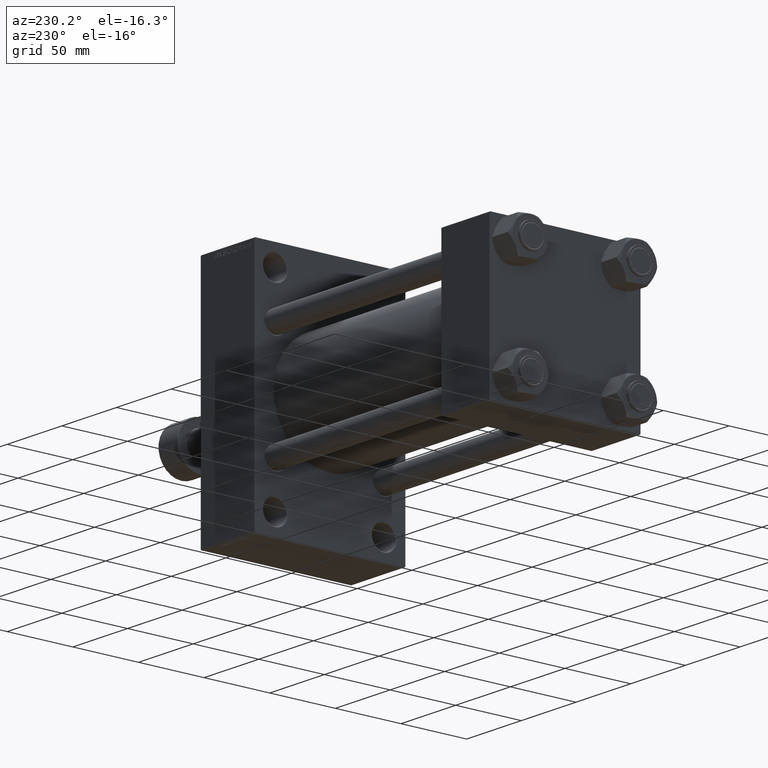
[diagram: clean part render]
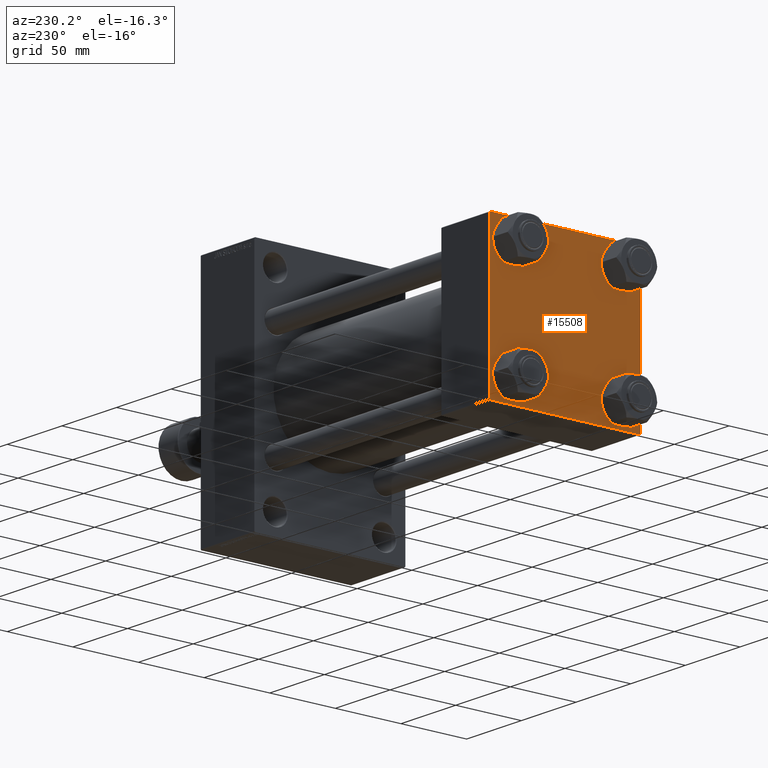
[diagram: same view with one face highlighted and labeled with its STEP entity id]
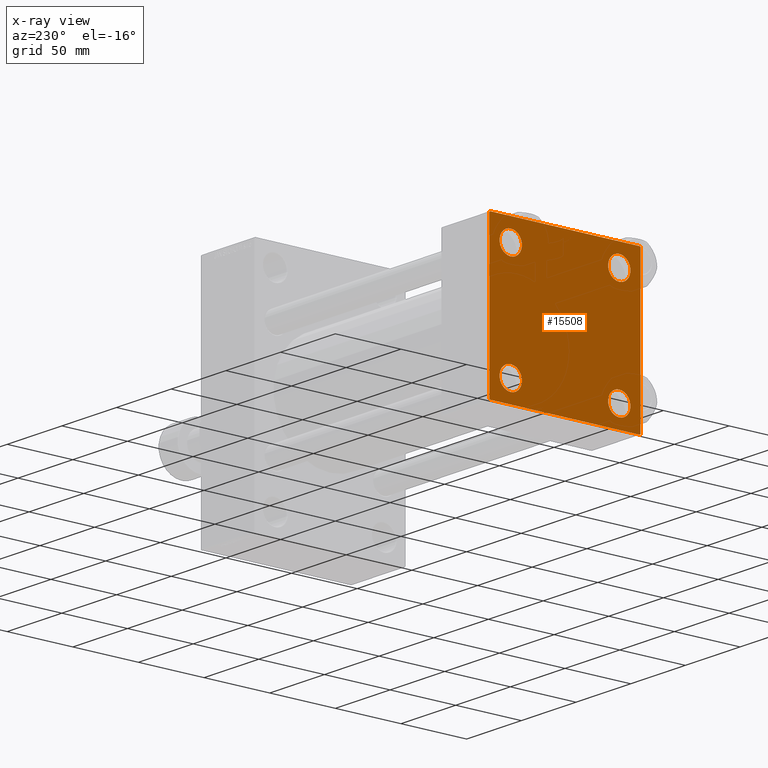
[diagram: x-ray of the same camera — body ghosted, the highlighted face saturated]
A machine part, auxiliary view. The second image highlights one B-rep face of the part: STEP entity #15508.
The next image is the same camera in x-ray: the body ghosted, the highlighted face saturated — about 0% of this face is hidden behind the body in this view.
In plain terms, the highlighted planar face has unit normal (-1, 0, 0).
Its self-contained STEP definition (entity closure, byte-faithful):
#165 = DIRECTION ( 'NONE',  ( 1.000000000000000000, -0.000000000000000000, 0.000000000000000000 ) ) ;
#230 = DIRECTION ( 'NONE',  ( 0.000000000000000000, -0.7071067811865474617, 0.7071067811865474617 ) ) ;
#781 = PLANE ( 'NONE',  #12154 ) ;
#1009 = DIRECTION ( 'NONE',  ( 1.000000000000000000, -0.000000000000000000, 0.000000000000000000 ) ) ;
#1037 = ORIENTED_EDGE ( 'NONE', *, *, #19076, .T. ) ;
#1373 = CIRCLE ( 'NONE', #19372, 8.499999999999992895 ) ;
#1486 = ORIENTED_EDGE ( 'NONE', *, *, #15288, .T. ) ;
#1750 = CARTESIAN_POINT ( 'NONE',  ( 0.000000000000000000, 41.34999999999999432, -41.35000000000000142 ) ) ;
#2036 = ORIENTED_EDGE ( 'NONE', *, *, #14814, .T. ) ;
#2110 = DIRECTION ( 'NONE',  ( 0.000000000000000000, 0.000000000000000000, 1.000000000000000000 ) ) ;
#2564 = ORIENTED_EDGE ( 'NONE', *, *, #19923, .T. ) ;
#2909 = AXIS2_PLACEMENT_3D ( 'NONE', #22882, #12624, #30483 ) ;
#3504 = FACE_BOUND ( 'NONE', #22619, .T. ) ;
#3588 = VERTEX_POINT ( 'NONE', #25608 ) ;
#4480 = FACE_BOUND ( 'NONE', #33860, .T. ) ;
#5069 = CARTESIAN_POINT ( 'NONE',  ( 0.000000000000000000, 41.34999999999999432, 41.35000000000000142 ) ) ;
#5521 = LINE ( 'NONE', #16780, #15372 ) ;
#5596 = VECTOR ( 'NONE', #37071, 1000.000000000000000 ) ;
#6247 = ORIENTED_EDGE ( 'NONE', *, *, #43983, .T. ) ;
#6556 = EDGE_CURVE ( 'NONE', #29292, #34307, #34594, .T. ) ;
#6741 = CIRCLE ( 'NONE', #34067, 8.499999999999992895 ) ;
#6870 = CARTESIAN_POINT ( 'NONE',  ( 0.000000000000000000, -41.34999999999998721, -49.85000000000000853 ) ) ;
#8028 = AXIS2_PLACEMENT_3D ( 'NONE', #31731, #31972, #2110 ) ;
#8545 = EDGE_CURVE ( 'NONE', #13778, #34322, #36998, .T. ) ;
#9130 = CARTESIAN_POINT ( 'NONE',  ( 0.000000000000000000, 57.00000000000002132, -57.49999999999999289 ) ) ;
#9654 = EDGE_CURVE ( 'NONE', #15282, #10548, #22521, .T. ) ;
#9808 = VERTEX_POINT ( 'NONE', #43518 ) ;
#9869 = EDGE_CURVE ( 'NONE', #23946, #9808, #18302, .T. ) ;
#10357 = CARTESIAN_POINT ( 'NONE',  ( 0.000000000000000000, 57.49999999999999289, 57.50000000000000711 ) ) ;
#10548 = VERTEX_POINT ( 'NONE', #45531 ) ;
#10558 = CIRCLE ( 'NONE', #44126, 8.499999999999992895 ) ;
#10998 = EDGE_LOOP ( 'NONE', ( #1486, #47725 ) ) ;
#11094 = LINE ( 'NONE', #11329, #30303 ) ;
#11329 = CARTESIAN_POINT ( 'NONE',  ( 0.000000000000000000, 57.25000000000081712, -57.24999999999922551 ) ) ;
#11695 = DIRECTION ( 'NONE',  ( 0.000000000000000000, 0.000000000000000000, 1.000000000000000000 ) ) ;
#11905 = VERTEX_POINT ( 'NONE', #9130 ) ;
#12063 = CARTESIAN_POINT ( 'NONE',  ( 0.000000000000000000, 0.000000000000000000, 0.000000000000000000 ) ) ;
#12154 = AXIS2_PLACEMENT_3D ( 'NONE', #12063, #26019, #15015 ) ;
#12624 = DIRECTION ( 'NONE',  ( 1.000000000000000000, -0.000000000000000000, 0.000000000000000000 ) ) ;
#12877 = VECTOR ( 'NONE', #230, 1000.000000000000114 ) ;
#12977 = CARTESIAN_POINT ( 'NONE',  ( 0.000000000000000000, 57.49999999999999289, 57.00000000000003553 ) ) ;
#13778 = VERTEX_POINT ( 'NONE', #14823 ) ;
#14239 = DIRECTION ( 'NONE',  ( 0.000000000000000000, 0.000000000000000000, 1.000000000000000000 ) ) ;
#14378 = ORIENTED_EDGE ( 'NONE', *, *, #6556, .T. ) ;
#14666 = CARTESIAN_POINT ( 'NONE',  ( 0.000000000000000000, -41.34999999999998721, 41.35000000000000853 ) ) ;
#14789 = FACE_BOUND ( 'NONE', #47913, .T. ) ;
#14814 = EDGE_CURVE ( 'NONE', #34322, #13778, #10558, .T. ) ;
#14823 = CARTESIAN_POINT ( 'NONE',  ( 0.000000000000000000, 41.34999999999999432, -32.85000000000000853 ) ) ;
#14886 = VERTEX_POINT ( 'NONE', #21564 ) ;
#15015 = DIRECTION ( 'NONE',  ( -0.000000000000000000, 0.000000000000000000, 1.000000000000000000 ) ) ;
#15172 = VERTEX_POINT ( 'NONE', #43271 ) ;
#15282 = VERTEX_POINT ( 'NONE', #34168 ) ;
#15288 = EDGE_CURVE ( 'NONE', #25096, #22832, #47275, .T. ) ;
#15372 = VECTOR ( 'NONE', #31229, 1000.000000000000000 ) ;
#15416 = DIRECTION ( 'NONE',  ( 0.000000000000000000, -1.000000000000000000, -1.206764157201257045E-16 ) ) ;
#15508 = ADVANCED_FACE ( 'NONE', ( #14789, #3504, #4480, #29704, #41379 ), #781, .T. ) ;
#16289 = LINE ( 'NONE', #31216, #44239 ) ;
#16440 = EDGE_CURVE ( 'NONE', #34307, #29292, #29512, .T. ) ;
#16780 = CARTESIAN_POINT ( 'NONE',  ( 0.000000000000000000, -57.50000000000000711, 57.49999999999999289 ) ) ;
#18043 = DIRECTION ( 'NONE',  ( 0.000000000000000000, 0.000000000000000000, 1.000000000000000000 ) ) ;
#18302 = CIRCLE ( 'NONE', #40938, 8.499999999999992895 ) ;
#19067 = CARTESIAN_POINT ( 'NONE',  ( 0.000000000000000000, 57.49999999999999289, -57.49999999999999289 ) ) ;
#19076 = EDGE_CURVE ( 'NONE', #14886, #42739, #36677, .T. ) ;
#19372 = AXIS2_PLACEMENT_3D ( 'NONE', #40281, #36619, #18043 ) ;
#19923 = EDGE_CURVE ( 'NONE', #11905, #15282, #37636, .T. ) ;
#19998 = DIRECTION ( 'NONE',  ( 1.000000000000000000, -0.000000000000000000, 0.000000000000000000 ) ) ;
#20234 = ORIENTED_EDGE ( 'NONE', *, *, #9654, .T. ) ;
#21536 = CARTESIAN_POINT ( 'NONE',  ( -0.000000000000000000, -57.25000000000081712, 57.24999999999922551 ) ) ;
#21559 = CARTESIAN_POINT ( 'NONE',  ( 0.000000000000000000, 41.34999999999999432, -41.35000000000000142 ) ) ;
#21564 = CARTESIAN_POINT ( 'NONE',  ( 0.000000000000000000, -57.50000000000000711, 57.00000000000000711 ) ) ;
#21646 = DIRECTION ( 'NONE',  ( 0.000000000000000000, 0.000000000000000000, 1.000000000000000000 ) ) ;
#21702 = CARTESIAN_POINT ( 'NONE',  ( 0.000000000000000000, 57.49999999999999289, 57.50000000000000711 ) ) ;
#22521 = LINE ( 'NONE', #33752, #12877 ) ;
#22619 = EDGE_LOOP ( 'NONE', ( #14378, #27438 ) ) ;
#22832 = VERTEX_POINT ( 'NONE', #39610 ) ;
#22882 = CARTESIAN_POINT ( 'NONE',  ( 0.000000000000000000, -41.34999999999998721, -41.35000000000000853 ) ) ;
#23208 = CARTESIAN_POINT ( 'NONE',  ( 0.000000000000000000, -41.34999999999998721, 32.85000000000001563 ) ) ;
#23946 = VERTEX_POINT ( 'NONE', #23208 ) ;
#24530 = AXIS2_PLACEMENT_3D ( 'NONE', #21559, #47683, #14239 ) ;
#25096 = VERTEX_POINT ( 'NONE', #41066 ) ;
#25219 = ORIENTED_EDGE ( 'NONE', *, *, #8545, .T. ) ;
#25608 = CARTESIAN_POINT ( 'NONE',  ( 0.000000000000000000, 57.49999999999999289, -57.00000000000000711 ) ) ;
#26019 = DIRECTION ( 'NONE',  ( -1.000000000000000000, 0.000000000000000000, -0.000000000000000000 ) ) ;
#26230 = AXIS2_PLACEMENT_3D ( 'NONE', #5069, #19998, #45154 ) ;
#27438 = ORIENTED_EDGE ( 'NONE', *, *, #16440, .T. ) ;
#27444 = ORIENTED_EDGE ( 'NONE', *, *, #30859, .T. ) ;
#27959 = EDGE_CURVE ( 'NONE', #22832, #25096, #1373, .T. ) ;
#29292 = VERTEX_POINT ( 'NONE', #37275 ) ;
#29402 = EDGE_CURVE ( 'NONE', #15172, #42739, #36028, .T. ) ;
#29512 = CIRCLE ( 'NONE', #2909, 8.499999999999992895 ) ;
#29704 = FACE_BOUND ( 'NONE', #10998, .T. ) ;
#30303 = VECTOR ( 'NONE', #33804, 1000.000000000000114 ) ;
#30483 = DIRECTION ( 'NONE',  ( 0.000000000000000000, 0.000000000000000000, 1.000000000000000000 ) ) ;
#30859 = EDGE_CURVE ( 'NONE', #3588, #11905, #11094, .T. ) ;
#31216 = CARTESIAN_POINT ( 'NONE',  ( 0.000000000000000000, 57.24999999999922551, 57.25000000000081712 ) ) ;
#31229 = DIRECTION ( 'NONE',  ( 0.000000000000000000, 0.000000000000000000, -1.000000000000000000 ) ) ;
#31619 = DIRECTION ( 'NONE',  ( 0.000000000000000000, 0.000000000000000000, 1.000000000000000000 ) ) ;
#31731 = CARTESIAN_POINT ( 'NONE',  ( 0.000000000000000000, -41.34999999999998721, -41.35000000000000853 ) ) ;
#31972 = DIRECTION ( 'NONE',  ( 1.000000000000000000, -0.000000000000000000, 0.000000000000000000 ) ) ;
#32225 = EDGE_LOOP ( 'NONE', ( #6247, #27444, #2564, #20234, #39359, #1037, #41186, #42502 ) ) ;
#33752 = CARTESIAN_POINT ( 'NONE',  ( 0.000000000000000000, -57.25000000000000711, -57.25000000000000711 ) ) ;
#33804 = DIRECTION ( 'NONE',  ( -0.000000000000000000, -0.7071067811865376918, -0.7071067811865573427 ) ) ;
#33860 = EDGE_LOOP ( 'NONE', ( #25219, #2036 ) ) ;
#34067 = AXIS2_PLACEMENT_3D ( 'NONE', #43897, #40453, #21646 ) ;
#34168 = CARTESIAN_POINT ( 'NONE',  ( 0.000000000000000000, -57.00000000000000711, -57.50000000000000711 ) ) ;
#34307 = VERTEX_POINT ( 'NONE', #6870 ) ;
#34322 = VERTEX_POINT ( 'NONE', #41068 ) ;
#34594 = CIRCLE ( 'NONE', #8028, 8.499999999999992895 ) ;
#36028 = LINE ( 'NONE', #10357, #48163 ) ;
#36605 = LINE ( 'NONE', #21702, #5596 ) ;
#36619 = DIRECTION ( 'NONE',  ( 1.000000000000000000, -0.000000000000000000, 0.000000000000000000 ) ) ;
#36677 = LINE ( 'NONE', #21536, #45555 ) ;
#36998 = CIRCLE ( 'NONE', #24530, 8.499999999999992895 ) ;
#37071 = DIRECTION ( 'NONE',  ( 0.000000000000000000, 0.000000000000000000, -1.000000000000000000 ) ) ;
#37275 = CARTESIAN_POINT ( 'NONE',  ( 0.000000000000000000, -41.34999999999998721, -32.85000000000001563 ) ) ;
#37636 = LINE ( 'NONE', #19067, #44058 ) ;
#39359 = ORIENTED_EDGE ( 'NONE', *, *, #47662, .F. ) ;
#39610 = CARTESIAN_POINT ( 'NONE',  ( 0.000000000000000000, 41.34999999999999432, 32.85000000000000853 ) ) ;
#40103 = DIRECTION ( 'NONE',  ( -0.000000000000000000, 0.7071067811865376918, 0.7071067811865573427 ) ) ;
#40281 = CARTESIAN_POINT ( 'NONE',  ( 0.000000000000000000, 41.34999999999999432, 41.35000000000000142 ) ) ;
#40453 = DIRECTION ( 'NONE',  ( 1.000000000000000000, -0.000000000000000000, 0.000000000000000000 ) ) ;
#40711 = ORIENTED_EDGE ( 'NONE', *, *, #9869, .T. ) ;
#40938 = AXIS2_PLACEMENT_3D ( 'NONE', #14666, #165, #11695 ) ;
#41066 = CARTESIAN_POINT ( 'NONE',  ( 0.000000000000000000, 41.34999999999999432, 49.85000000000000142 ) ) ;
#41068 = CARTESIAN_POINT ( 'NONE',  ( 0.000000000000000000, 41.34999999999999432, -49.85000000000000142 ) ) ;
#41186 = ORIENTED_EDGE ( 'NONE', *, *, #29402, .F. ) ;
#41379 = FACE_OUTER_BOUND ( 'NONE', #32225, .T. ) ;
#42502 = ORIENTED_EDGE ( 'NONE', *, *, #46380, .T. ) ;
#42739 = VERTEX_POINT ( 'NONE', #44689 ) ;
#43271 = CARTESIAN_POINT ( 'NONE',  ( 0.000000000000000000, 57.00000000000000711, 57.50000000000000711 ) ) ;
#43518 = CARTESIAN_POINT ( 'NONE',  ( 0.000000000000000000, -41.34999999999998721, 49.85000000000000853 ) ) ;
#43861 = DIRECTION ( 'NONE',  ( 0.000000000000000000, -1.000000000000000000, -1.206764157201257045E-16 ) ) ;
#43897 = CARTESIAN_POINT ( 'NONE',  ( 0.000000000000000000, -41.34999999999998721, 41.35000000000000853 ) ) ;
#43983 = EDGE_CURVE ( 'NONE', #45540, #3588, #36605, .T. ) ;
#44058 = VECTOR ( 'NONE', #15416, 1000.000000000000000 ) ;
#44126 = AXIS2_PLACEMENT_3D ( 'NONE', #1750, #1009, #31619 ) ;
#44239 = VECTOR ( 'NONE', #46072, 1000.000000000000114 ) ;
#44689 = CARTESIAN_POINT ( 'NONE',  ( 0.000000000000000000, -57.00000000000003553, 57.49999999999999289 ) ) ;
#45154 = DIRECTION ( 'NONE',  ( 0.000000000000000000, 0.000000000000000000, 1.000000000000000000 ) ) ;
#45531 = CARTESIAN_POINT ( 'NONE',  ( 0.000000000000000000, -57.50000000000000711, -57.00000000000000711 ) ) ;
#45540 = VERTEX_POINT ( 'NONE', #12977 ) ;
#45555 = VECTOR ( 'NONE', #40103, 1000.000000000000114 ) ;
#46072 = DIRECTION ( 'NONE',  ( 0.000000000000000000, 0.7071067811865573427, -0.7071067811865376918 ) ) ;
#46380 = EDGE_CURVE ( 'NONE', #15172, #45540, #16289, .T. ) ;
#46819 = ORIENTED_EDGE ( 'NONE', *, *, #47237, .T. ) ;
#47237 = EDGE_CURVE ( 'NONE', #9808, #23946, #6741, .T. ) ;
#47275 = CIRCLE ( 'NONE', #26230, 8.499999999999992895 ) ;
#47662 = EDGE_CURVE ( 'NONE', #14886, #10548, #5521, .T. ) ;
#47683 = DIRECTION ( 'NONE',  ( 1.000000000000000000, -0.000000000000000000, 0.000000000000000000 ) ) ;
#47725 = ORIENTED_EDGE ( 'NONE', *, *, #27959, .T. ) ;
#47913 = EDGE_LOOP ( 'NONE', ( #46819, #40711 ) ) ;
#48163 = VECTOR ( 'NONE', #43861, 1000.000000000000000 ) ;